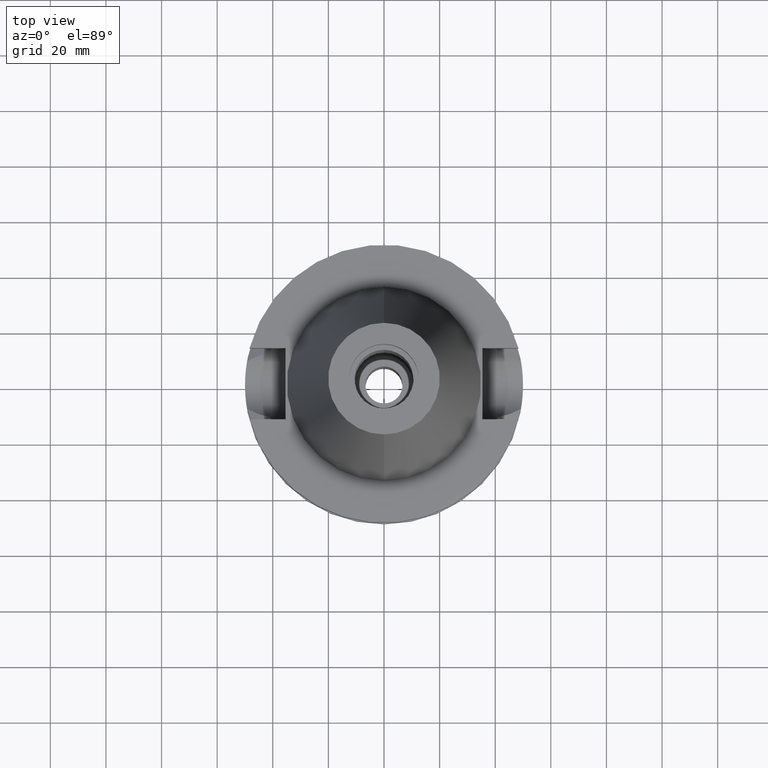
[diagram: clean part render]
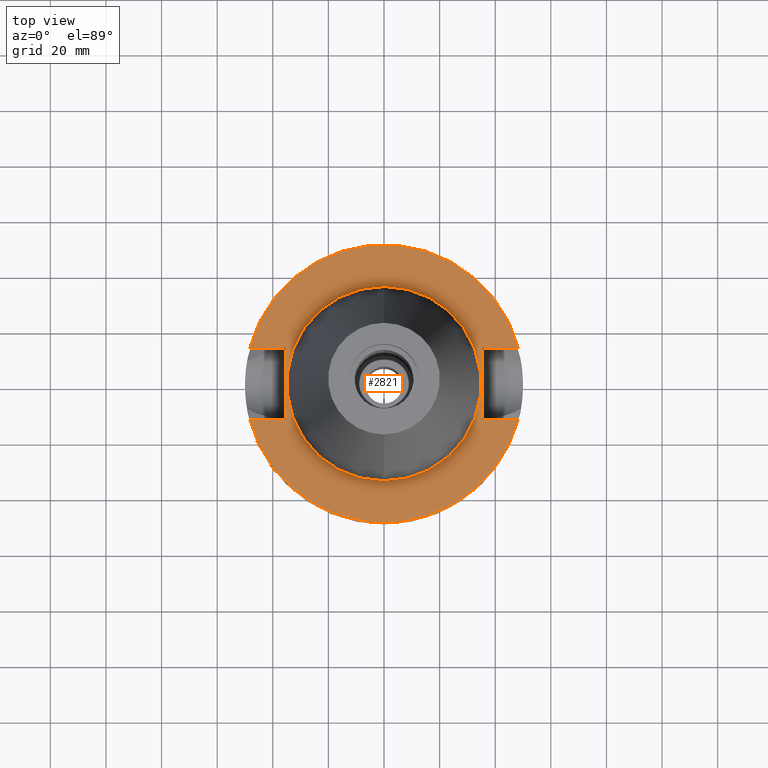
[diagram: same view with one face highlighted and labeled with its STEP entity id]
A machine part, top view. The second image highlights one B-rep face of the part: STEP entity #2821.
In plain terms, the highlighted planar face has unit normal (0, 0, -1).
Its self-contained STEP definition (entity closure, byte-faithful):
#39 = DIRECTION ( 'NONE',  ( 0.0000000000000000000, -1.000000000000000000, 0.0000000000000000000 ) ) ;
#72 = EDGE_CURVE ( 'NONE', #1023, #3389, #3259, .T. ) ;
#91 = CARTESIAN_POINT ( 'NONE',  ( -35.39999999999999858, -12.84999999999999964, -3.000000000000000000 ) ) ;
#135 = ORIENTED_EDGE ( 'NONE', *, *, #72, .T. ) ;
#193 = ORIENTED_EDGE ( 'NONE', *, *, #847, .F. ) ;
#207 = DIRECTION ( 'NONE',  ( 0.0000000000000000000, 0.0000000000000000000, -1.000000000000000000 ) ) ;
#263 = DIRECTION ( 'NONE',  ( 0.0000000000000000000, 1.000000000000000000, 0.0000000000000000000 ) ) ;
#341 = CIRCLE ( 'NONE', #1889, 50.00000000000000000 ) ;
#357 = VECTOR ( 'NONE', #2907, 1000.000000000000000 ) ;
#503 = DIRECTION ( 'NONE',  ( -1.000000000000000000, 0.0000000000000000000, 0.0000000000000000000 ) ) ;
#524 = CARTESIAN_POINT ( 'NONE',  ( 0.0000000000000000000, 2.602251983507999750E-14, -3.000000000000000000 ) ) ;
#526 = EDGE_LOOP ( 'NONE', ( #3554, #882 ) ) ;
#644 = VECTOR ( 'NONE', #3021, 1000.000000000000000 ) ;
#678 = EDGE_LOOP ( 'NONE', ( #135, #193, #2743, #720, #3291, #2908, #838, #2062 ) ) ;
#720 = ORIENTED_EDGE ( 'NONE', *, *, #3096, .F. ) ;
#728 = DIRECTION ( 'NONE',  ( 0.0000000000000000000, -1.000000000000000000, 0.0000000000000000000 ) ) ;
#805 = VECTOR ( 'NONE', #2096, 1000.000000000000000 ) ;
#838 = ORIENTED_EDGE ( 'NONE', *, *, #2912, .F. ) ;
#847 = EDGE_CURVE ( 'NONE', #1134, #3389, #1101, .T. ) ;
#848 = LINE ( 'NONE', #3375, #3301 ) ;
#878 = VERTEX_POINT ( 'NONE', #2378 ) ;
#882 = ORIENTED_EDGE ( 'NONE', *, *, #3007, .F. ) ;
#889 = CARTESIAN_POINT ( 'NONE',  ( 0.0000000000000000000, 2.602251983507999750E-14, -3.000000000000000000 ) ) ;
#943 = CARTESIAN_POINT ( 'NONE',  ( -48.32057015392000210, -12.84999999999999964, -3.000000000000000000 ) ) ;
#955 = DIRECTION ( 'NONE',  ( 0.0000000000000000000, 0.0000000000000000000, -1.000000000000000000 ) ) ;
#973 = VERTEX_POINT ( 'NONE', #1217 ) ;
#974 = VECTOR ( 'NONE', #503, 1000.000000000000000 ) ;
#1023 = VERTEX_POINT ( 'NONE', #2393 ) ;
#1095 = CARTESIAN_POINT ( 'NONE',  ( -35.39999999999999858, 12.84999999999999964, -3.000000000000000000 ) ) ;
#1101 = CIRCLE ( 'NONE', #2710, 50.00000000000000000 ) ;
#1134 = VERTEX_POINT ( 'NONE', #3247 ) ;
#1147 = VERTEX_POINT ( 'NONE', #2685 ) ;
#1175 = VERTEX_POINT ( 'NONE', #3641 ) ;
#1177 = VECTOR ( 'NONE', #39, 1000.000000000000000 ) ;
#1213 = EDGE_CURVE ( 'NONE', #2869, #1134, #848, .T. ) ;
#1217 = CARTESIAN_POINT ( 'NONE',  ( 0.0000000000000000000, -34.92499999999999716, -3.000000000000000000 ) ) ;
#1345 = AXIS2_PLACEMENT_3D ( 'NONE', #524, #1662, #2794 ) ;
#1473 = VERTEX_POINT ( 'NONE', #1803 ) ;
#1526 = DIRECTION ( 'NONE',  ( 0.0000000000000000000, 0.0000000000000000000, -1.000000000000000000 ) ) ;
#1613 = CARTESIAN_POINT ( 'NONE',  ( 0.0000000000000000000, 2.602251983507999750E-14, -3.000000000000000000 ) ) ;
#1662 = DIRECTION ( 'NONE',  ( 0.0000000000000000000, 0.0000000000000000000, 1.000000000000000000 ) ) ;
#1692 = EDGE_CURVE ( 'NONE', #1023, #1175, #2362, .T. ) ;
#1712 = DIRECTION ( 'NONE',  ( 0.0000000000000000000, 0.0000000000000000000, 1.000000000000000000 ) ) ;
#1801 = CARTESIAN_POINT ( 'NONE',  ( 0.0000000000000000000, 1.187907395172999884E-14, -3.000000000000000000 ) ) ;
#1803 = CARTESIAN_POINT ( 'NONE',  ( -48.32057015392000210, 12.84999999999999964, -3.000000000000000000 ) ) ;
#1833 = VERTEX_POINT ( 'NONE', #3311 ) ;
#1856 = FACE_BOUND ( 'NONE', #526, .T. ) ;
#1868 = DIRECTION ( 'NONE',  ( 0.0000000000000000000, 1.000000000000000000, 0.0000000000000000000 ) ) ;
#1889 = AXIS2_PLACEMENT_3D ( 'NONE', #1613, #207, #1868 ) ;
#1922 = EDGE_CURVE ( 'NONE', #1473, #878, #341, .T. ) ;
#1969 = CARTESIAN_POINT ( 'NONE',  ( 35.39999999999999858, 12.84999999999999964, -3.000000000000000000 ) ) ;
#2062 = ORIENTED_EDGE ( 'NONE', *, *, #1692, .F. ) ;
#2096 = DIRECTION ( 'NONE',  ( 0.0000000000000000000, 1.000000000000000000, 0.0000000000000000000 ) ) ;
#2104 = EDGE_CURVE ( 'NONE', #1147, #973, #2829, .T. ) ;
#2238 = LINE ( 'NONE', #1095, #644 ) ;
#2272 = LINE ( 'NONE', #1969, #1177 ) ;
#2352 = FACE_OUTER_BOUND ( 'NONE', #678, .T. ) ;
#2362 = LINE ( 'NONE', #91, #805 ) ;
#2378 = CARTESIAN_POINT ( 'NONE',  ( 48.32057015392000210, 12.84999999999999964, -3.000000000000000000 ) ) ;
#2393 = CARTESIAN_POINT ( 'NONE',  ( -35.39999999999999858, -12.84999999999999964, -3.000000000000000000 ) ) ;
#2509 = CARTESIAN_POINT ( 'NONE',  ( 0.0000000000000000000, 2.602251983507999750E-14, -3.000000000000000000 ) ) ;
#2559 = DIRECTION ( 'NONE',  ( 1.000000000000000000, 0.0000000000000000000, 0.0000000000000000000 ) ) ;
#2596 = AXIS2_PLACEMENT_3D ( 'NONE', #2509, #1712, #263 ) ;
#2685 = CARTESIAN_POINT ( 'NONE',  ( 0.0000000000000000000, 34.92499999999999716, -3.000000000000000000 ) ) ;
#2710 = AXIS2_PLACEMENT_3D ( 'NONE', #889, #955, #2893 ) ;
#2743 = ORIENTED_EDGE ( 'NONE', *, *, #1213, .F. ) ;
#2794 = DIRECTION ( 'NONE',  ( 0.0000000000000000000, -1.000000000000000000, 0.0000000000000000000 ) ) ;
#2821 = ADVANCED_FACE ( 'NONE', ( #2352, #1856 ), #2980, .F. ) ;
#2826 = EDGE_CURVE ( 'NONE', #1833, #878, #3517, .T. ) ;
#2829 = CIRCLE ( 'NONE', #2596, 34.92499999999999716 ) ;
#2869 = VERTEX_POINT ( 'NONE', #3652 ) ;
#2893 = DIRECTION ( 'NONE',  ( 0.0000000000000000000, -1.000000000000000000, 0.0000000000000000000 ) ) ;
#2907 = DIRECTION ( 'NONE',  ( 1.000000000000000000, 0.0000000000000000000, 0.0000000000000000000 ) ) ;
#2908 = ORIENTED_EDGE ( 'NONE', *, *, #1922, .F. ) ;
#2912 = EDGE_CURVE ( 'NONE', #1175, #1473, #2238, .T. ) ;
#2961 = CIRCLE ( 'NONE', #1345, 34.92499999999999716 ) ;
#2980 = PLANE ( 'NONE',  #3083 ) ;
#3007 = EDGE_CURVE ( 'NONE', #973, #1147, #2961, .T. ) ;
#3021 = DIRECTION ( 'NONE',  ( -1.000000000000000000, 0.0000000000000000000, 0.0000000000000000000 ) ) ;
#3040 = CARTESIAN_POINT ( 'NONE',  ( -35.39999999999999858, -12.84999999999999964, -3.000000000000000000 ) ) ;
#3083 = AXIS2_PLACEMENT_3D ( 'NONE', #1801, #1526, #728 ) ;
#3096 = EDGE_CURVE ( 'NONE', #1833, #2869, #2272, .T. ) ;
#3247 = CARTESIAN_POINT ( 'NONE',  ( 48.32057015392000210, -12.84999999999999964, -3.000000000000000000 ) ) ;
#3259 = LINE ( 'NONE', #3040, #974 ) ;
#3281 = CARTESIAN_POINT ( 'NONE',  ( 35.39999999999999858, 12.84999999999999964, -3.000000000000000000 ) ) ;
#3291 = ORIENTED_EDGE ( 'NONE', *, *, #2826, .T. ) ;
#3301 = VECTOR ( 'NONE', #2559, 1000.000000000000000 ) ;
#3311 = CARTESIAN_POINT ( 'NONE',  ( 35.39999999999999858, 12.84999999999999964, -3.000000000000000000 ) ) ;
#3375 = CARTESIAN_POINT ( 'NONE',  ( 35.39999999999999858, -12.84999999999999964, -3.000000000000000000 ) ) ;
#3389 = VERTEX_POINT ( 'NONE', #943 ) ;
#3517 = LINE ( 'NONE', #3281, #357 ) ;
#3554 = ORIENTED_EDGE ( 'NONE', *, *, #2104, .F. ) ;
#3641 = CARTESIAN_POINT ( 'NONE',  ( -35.39999999999999858, 12.84999999999999964, -3.000000000000000000 ) ) ;
#3652 = CARTESIAN_POINT ( 'NONE',  ( 35.39999999999999858, -12.84999999999999964, -3.000000000000000000 ) ) ;